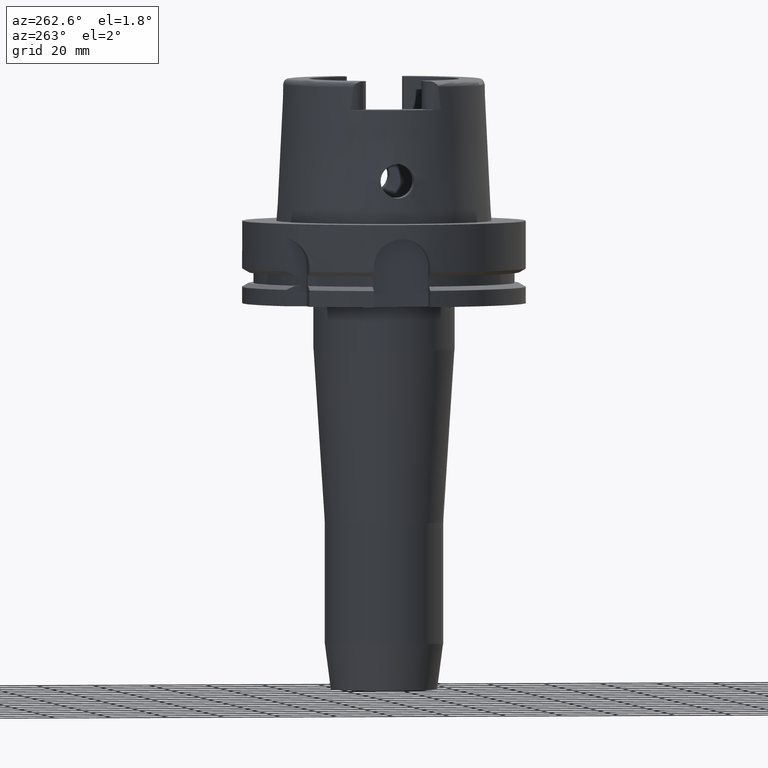
[diagram: clean part render]
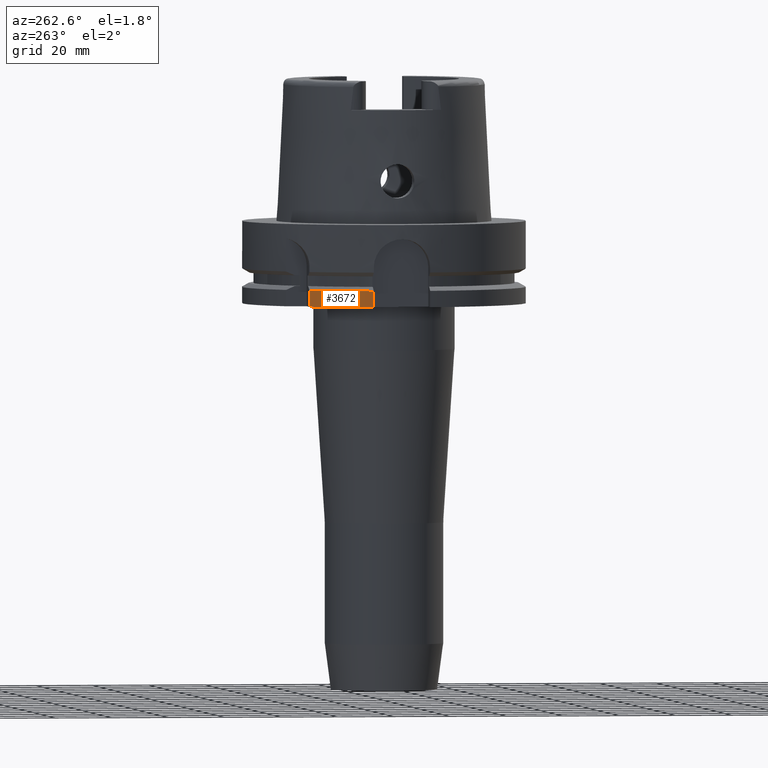
[diagram: same view with one face highlighted and labeled with its STEP entity id]
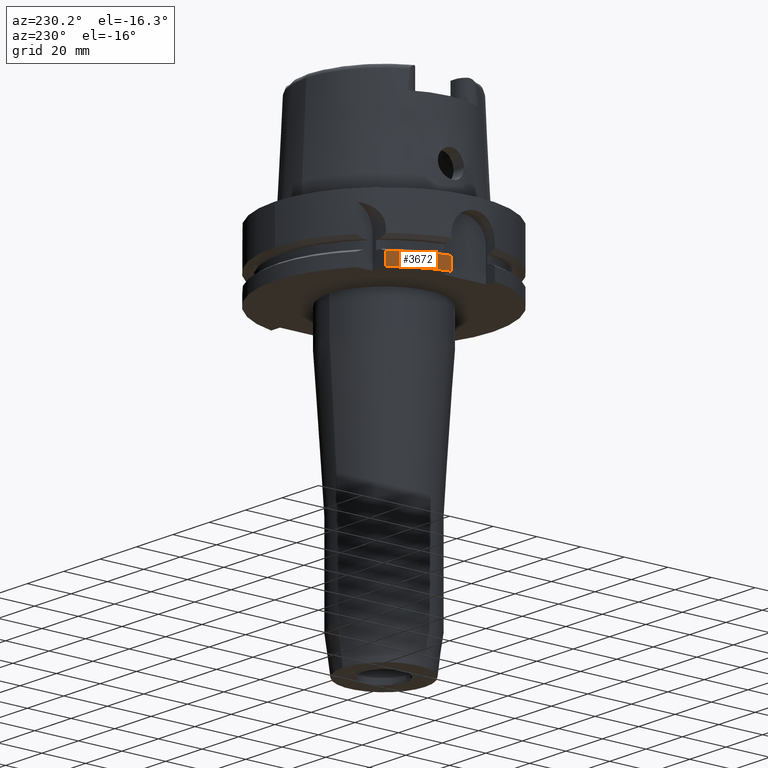
[diagram: same view with one face highlighted and labeled with its STEP entity id]
A machine part, auxiliary view. The second image highlights one B-rep face of the part: STEP entity #3672.
A second angle (auxiliary view) of the same face is appended — the face is thin or edge-on in the first view.
In plain terms, the highlighted cylindrical surface (partial cylindrical patch) has radius 50 mm, axis along (0, 0, 1).
Its self-contained STEP definition (entity closure, byte-faithful):
#1202=CARTESIAN_POINT('',(0.E0,0.E0,-2.9E1));
#1203=DIRECTION('',(0.E0,0.E0,1.E0));
#1204=DIRECTION('',(-7.765951326142E-1,6.3E-1,0.E0));
#1205=AXIS2_PLACEMENT_3D('',#1202,#1203,#1204);
#1455=DIRECTION('',(-1.164835654148E-7,-1.435883620959E-7,1.E0));
#1456=VECTOR('',#1455,5.752407739009E0);
#1457=CARTESIAN_POINT('',(-3.882975663071E1,3.15E1,-2.9E1));
#1458=LINE('',#1457,#1456);
#1462=DIRECTION('',(-8.399427413532E-14,0.E0,-1.E0));
#1463=VECTOR('',#1462,5.752404735809E0);
#1464=CARTESIAN_POINT('',(-4.898979485566E1,1.E1,-2.324759526419E1));
#1465=LINE('',#1464,#1463);
#2122=CARTESIAN_POINT('',(0.E0,0.E0,-2.324759526419E1));
#2123=DIRECTION('',(0.E0,0.E0,-1.E0));
#2124=DIRECTION('',(-9.797958971133E-1,2.E-1,0.E0));
#2125=AXIS2_PLACEMENT_3D('',#2122,#2123,#2124);
#2399=CARTESIAN_POINT('',(-3.882975663071E1,3.15E1,-2.9E1));
#2400=VERTEX_POINT('',#2399);
#2401=CARTESIAN_POINT('',(-4.898979485566E1,1.E1,-2.9E1));
#2402=VERTEX_POINT('',#2401);
#2445=CARTESIAN_POINT('',(-3.882975730077E1,3.149999917402E1,
-2.324759226099E1));
#2446=VERTEX_POINT('',#2445);
#2447=CARTESIAN_POINT('',(-4.898979485566E1,1.E1,-2.324759526419E1));
#2448=VERTEX_POINT('',#2447);
#3659=CARTESIAN_POINT('',(0.E0,0.E0,-1.7575E2));
#3660=DIRECTION('',(0.E0,0.E0,1.E0));
#3661=DIRECTION('',(0.E0,1.E0,0.E0));
#3662=AXIS2_PLACEMENT_3D('',#3659,#3660,#3661);
#3663=CYLINDRICAL_SURFACE('',#3662,5.E1);
#3665=ORIENTED_EDGE('',*,*,#3664,.T.);
#3667=ORIENTED_EDGE('',*,*,#3666,.F.);
#3668=ORIENTED_EDGE('',*,*,#3639,.T.);
#3669=ORIENTED_EDGE('',*,*,#3431,.F.);
#3670=EDGE_LOOP('',(#3665,#3667,#3668,#3669));
#3671=FACE_OUTER_BOUND('',#3670,.F.);
#1206=CIRCLE('',#1205,5.E1);
#2126=CIRCLE('',#2125,5.E1);
#3431=EDGE_CURVE('',#2400,#2402,#1206,.T.);
#3639=EDGE_CURVE('',#2448,#2402,#1465,.T.);
#3664=EDGE_CURVE('',#2400,#2446,#1458,.T.);
#3666=EDGE_CURVE('',#2448,#2446,#2126,.T.);
#3672=ADVANCED_FACE('',(#3671),#3663,.T.);